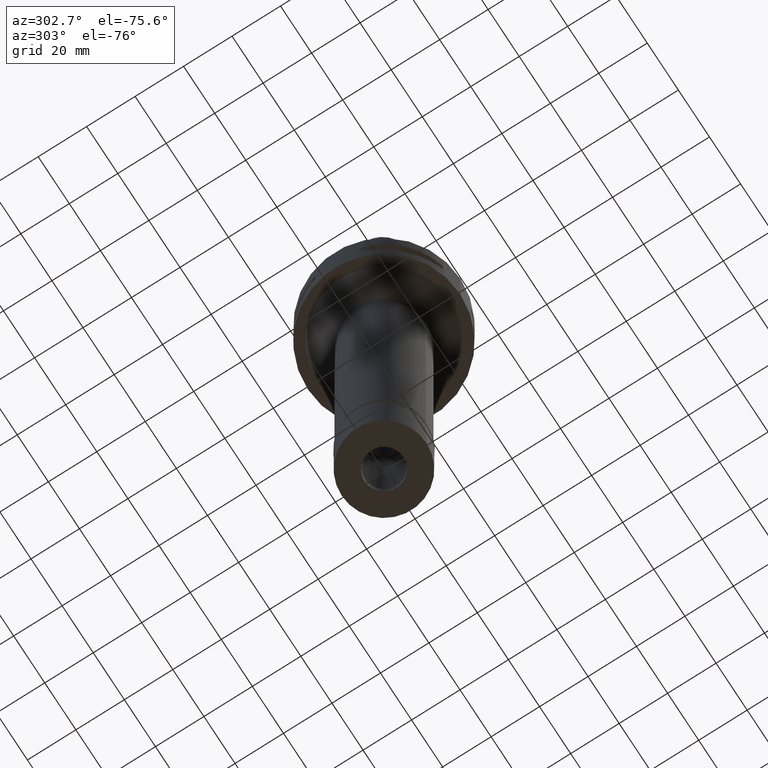
[diagram: clean part render]
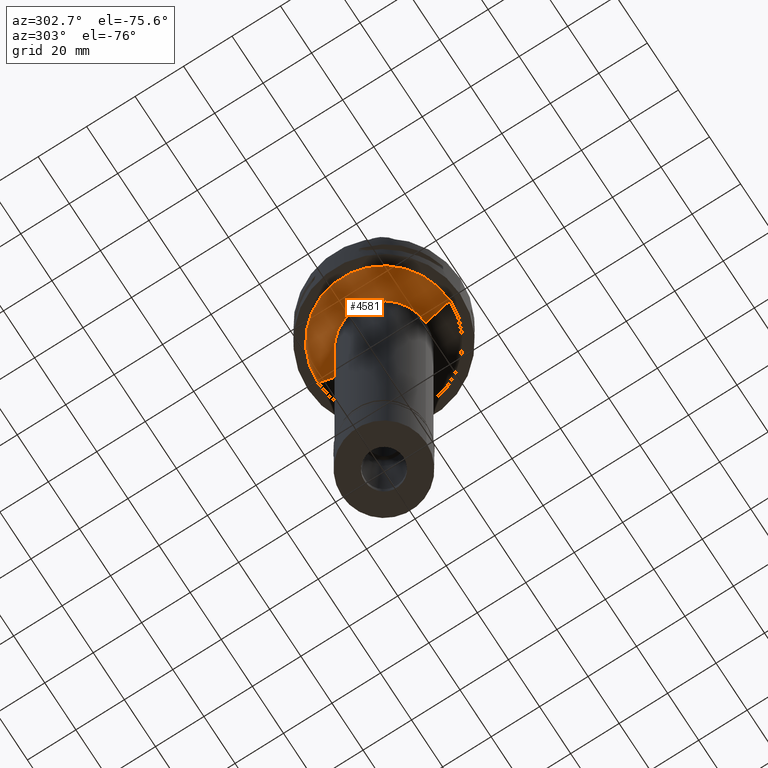
[diagram: same view with one face highlighted and labeled with its STEP entity id]
A machine part, auxiliary view. The second image highlights one B-rep face of the part: STEP entity #4581.
In plain terms, the highlighted conical surface has half-angle 45 deg.
Its self-contained STEP definition (entity closure, byte-faithful):
#74 = DIRECTION ( 'NONE',  ( 0.0000000000000000000, -0.7071067811865474617, -0.7071067811865474617 ) ) ;
#97 = LINE ( 'NONE', #1213, #2880 ) ;
#310 = CARTESIAN_POINT ( 'NONE',  ( 0.0000000000000000000, 0.0000000000000000000, -27.00000000000000000 ) ) ;
#360 = ORIENTED_EDGE ( 'NONE', *, *, #3033, .F. ) ;
#369 = AXIS2_PLACEMENT_3D ( 'NONE', #310, #4456, #3332 ) ;
#403 = ORIENTED_EDGE ( 'NONE', *, *, #1650, .T. ) ;
#430 = CIRCLE ( 'NONE', #1990, 27.25000000000000000 ) ;
#555 = EDGE_LOOP ( 'NONE', ( #360, #1709, #1569, #403 ) ) ;
#727 = DIRECTION ( 'NONE',  ( 0.0000000000000000000, 0.0000000000000000000, -1.000000000000000000 ) ) ;
#813 = VERTEX_POINT ( 'NONE', #4475 ) ;
#816 = VERTEX_POINT ( 'NONE', #1805 ) ;
#1080 = EDGE_CURVE ( 'NONE', #4255, #813, #430, .T. ) ;
#1213 = CARTESIAN_POINT ( 'NONE',  ( 0.0000000000000000000, 27.25000000000000000, -22.00000000000000000 ) ) ;
#1223 = CIRCLE ( 'NONE', #2339, 17.25000000000000000 ) ;
#1569 = ORIENTED_EDGE ( 'NONE', *, *, #1080, .T. ) ;
#1650 = EDGE_CURVE ( 'NONE', #813, #816, #97, .T. ) ;
#1709 = ORIENTED_EDGE ( 'NONE', *, *, #3793, .F. ) ;
#1748 = CARTESIAN_POINT ( 'NONE',  ( 0.0000000000000000000, -27.25000000000000000, -22.00000000000000000 ) ) ;
#1784 = VERTEX_POINT ( 'NONE', #4774 ) ;
#1805 = CARTESIAN_POINT ( 'NONE',  ( 0.0000000000000000000, 17.25000000000000000, -32.00000000000000000 ) ) ;
#1990 = AXIS2_PLACEMENT_3D ( 'NONE', #4137, #727, #3274 ) ;
#2339 = AXIS2_PLACEMENT_3D ( 'NONE', #4343, #2763, #3958 ) ;
#2763 = DIRECTION ( 'NONE',  ( 0.0000000000000000000, 0.0000000000000000000, -1.000000000000000000 ) ) ;
#2880 = VECTOR ( 'NONE', #74, 1000.000000000000114 ) ;
#2890 = FACE_OUTER_BOUND ( 'NONE', #555, .T. ) ;
#3033 = EDGE_CURVE ( 'NONE', #1784, #816, #1223, .T. ) ;
#3274 = DIRECTION ( 'NONE',  ( 0.0000000000000000000, -1.000000000000000000, 0.0000000000000000000 ) ) ;
#3332 = DIRECTION ( 'NONE',  ( 0.0000000000000000000, 1.000000000000000000, 0.0000000000000000000 ) ) ;
#3368 = CONICAL_SURFACE ( 'NONE', #369, 22.25000000000000000, 0.7853981633972997312 ) ;
#3490 = CARTESIAN_POINT ( 'NONE',  ( 0.0000000000000000000, -27.25000000000000000, -22.00000000000000000 ) ) ;
#3793 = EDGE_CURVE ( 'NONE', #4255, #1784, #4690, .T. ) ;
#3958 = DIRECTION ( 'NONE',  ( 0.0000000000000000000, -1.000000000000000000, 0.0000000000000000000 ) ) ;
#4137 = CARTESIAN_POINT ( 'NONE',  ( 0.0000000000000000000, 0.0000000000000000000, -22.00000000000000000 ) ) ;
#4255 = VERTEX_POINT ( 'NONE', #3490 ) ;
#4343 = CARTESIAN_POINT ( 'NONE',  ( 0.0000000000000000000, 0.0000000000000000000, -32.00000000000000000 ) ) ;
#4391 = DIRECTION ( 'NONE',  ( 0.0000000000000000000, 0.7071067811865474617, -0.7071067811865474617 ) ) ;
#4456 = DIRECTION ( 'NONE',  ( 0.0000000000000000000, 0.0000000000000000000, 1.000000000000000000 ) ) ;
#4475 = CARTESIAN_POINT ( 'NONE',  ( 0.0000000000000000000, 27.25000000000000000, -22.00000000000000000 ) ) ;
#4563 = VECTOR ( 'NONE', #4391, 1000.000000000000114 ) ;
#4581 = ADVANCED_FACE ( 'NONE', ( #2890 ), #3368, .T. ) ;
#4690 = LINE ( 'NONE', #1748, #4563 ) ;
#4774 = CARTESIAN_POINT ( 'NONE',  ( 0.0000000000000000000, -17.25000000000000000, -32.00000000000000000 ) ) ;